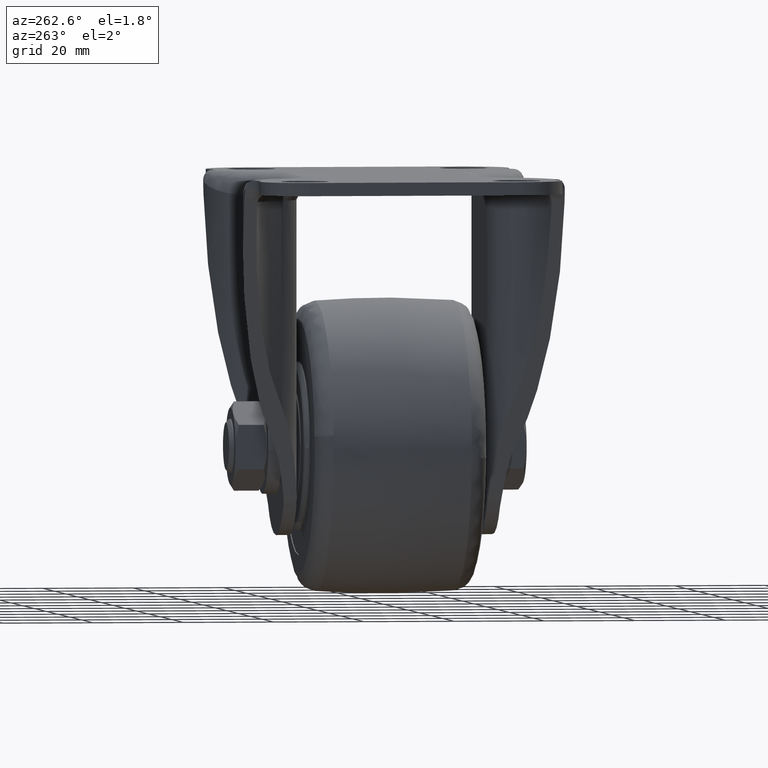
[diagram: clean part render]
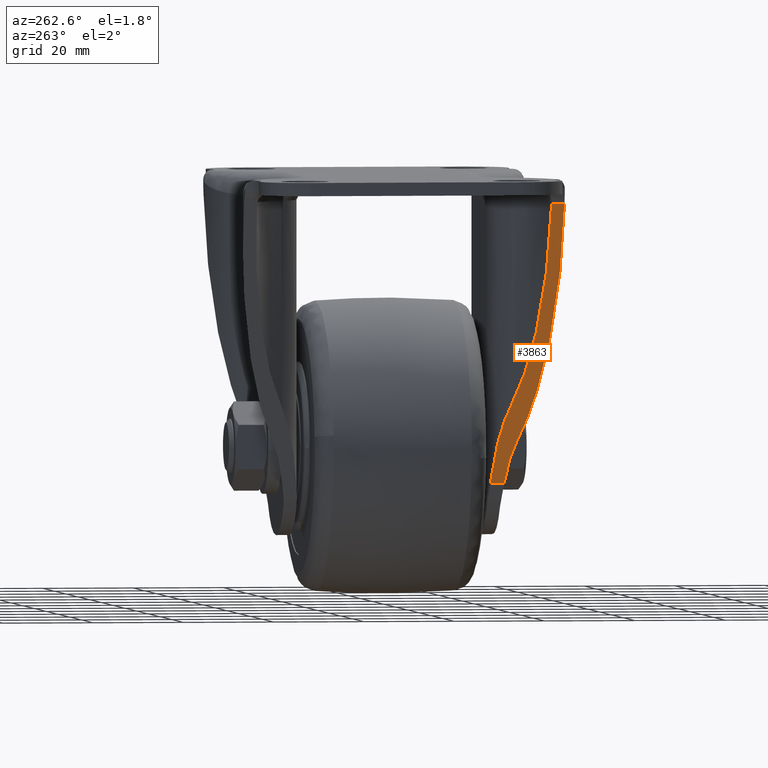
[diagram: same view with one face highlighted and labeled with its STEP entity id]
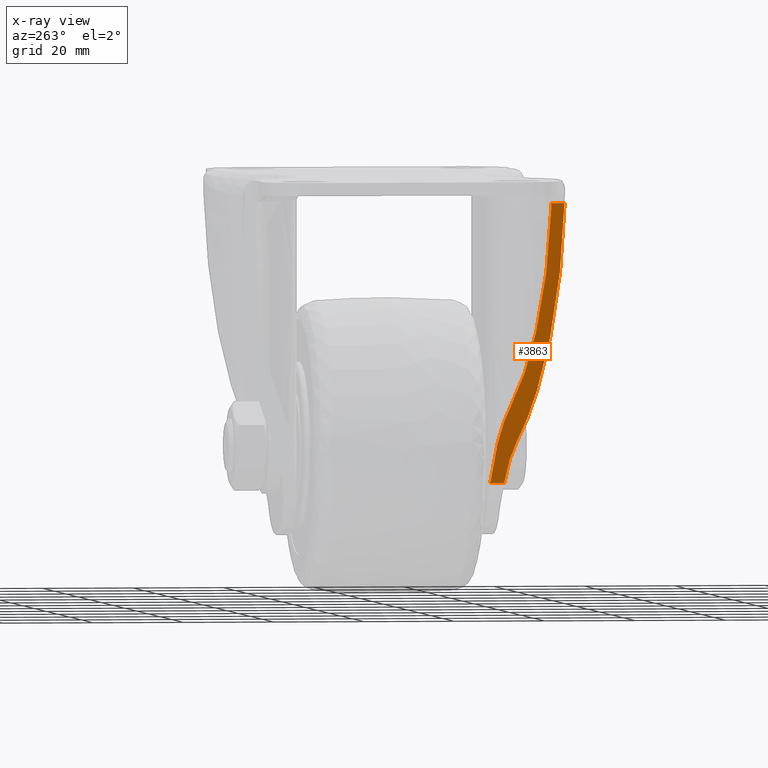
[diagram: x-ray of the same camera — body ghosted, the highlighted face saturated]
A machine part, auxiliary view. The second image highlights one B-rep face of the part: STEP entity #3863.
The next image is the same camera in x-ray: the body ghosted, the highlighted face saturated — about 0% of this face is hidden behind the body in this view.
In plain terms, the highlighted face is a freeform B-spline surface patch.
Its self-contained STEP definition (entity closure, byte-faithful):
#3720=CARTESIAN_POINT('',(-15.788895217503800,-24.576652694973451,-67.391547508985795));
#3721=VERTEX_POINT('',#3720);
#3739=CARTESIAN_POINT('',(-15.788895217503800,-21.489115287832949,-67.391547508985795));
#3740=VERTEX_POINT('',#3739);
#3741=CARTESIAN_POINT('',(-15.788895217503800,-21.489115287832949,-67.391547508985795));
#3742=CARTESIAN_POINT('',(-15.788895217503800,-24.576652694973451,-67.391547508985795));
#3743=QUASI_UNIFORM_CURVE('',1,(#3741,#3742),.UNSPECIFIED.,.F.,.U.);
#3744=EDGE_CURVE('',#3740,#3721,#3743,.T.);
#3783=CARTESIAN_POINT('',(-35.547570941917193,-36.198834765034668,-2.286271599631040));
#3784=CARTESIAN_POINT('',(-14.848901555015850,-36.198834765034668,-70.488847530651938));
#3785=CARTESIAN_POINT('',(-35.547570941917193,-20.789319244880819,-2.286271599631040));
#3786=CARTESIAN_POINT('',(-14.848901555015850,-20.789319244880819,-70.488847530651938));
#3787=B_SPLINE_SURFACE_WITH_KNOTS('',1,1,((#3783,#3785),(#3784,#3786)),.UNSPECIFIED.,.F.,.F.,.U.,(2,2),(2,2),(0.0,71.274303069303457),(0.0,15.409515520153841),.UNSPECIFIED.);
#3788=CARTESIAN_POINT('',(-34.607577784185750,-35.485244668119449,-5.383569958113631));
#3789=VERTEX_POINT('',#3788);
#3790=CARTESIAN_POINT('',(-18.621833761987101,-27.051020408163250,-58.056952005455202));
#3791=VERTEX_POINT('',#3790);
#3792=CARTESIAN_POINT('',(-34.607577784185743,-35.485244668119449,-5.383569958113628));
#3793=CARTESIAN_POINT('',(-24.166527894351418,-35.908268214409276,-39.787061535289233));
#3794=CARTESIAN_POINT('',(-18.621833761987109,-27.051020408163250,-58.056952005455109));
#3802=(BOUNDED_CURVE()B_SPLINE_CURVE(2,(#3792,#3793,#3794),.UNSPECIFIED.,.F.,.U.)CURVE()GEOMETRIC_REPRESENTATION_ITEM()QUASI_UNIFORM_CURVE()RATIONAL_B_SPLINE_CURVE((1.0,0.864830609078626,1.0))REPRESENTATION_ITEM(''));
#3803=EDGE_CURVE('',#3789,#3791,#3802,.T.);
#3804=ORIENTED_EDGE('',*,*,#3803,.F.);
#3805=CARTESIAN_POINT('',(-34.607577784185658,-32.590102987473450,-5.383569958113840));
#3806=VERTEX_POINT('',#3805);
#3807=CARTESIAN_POINT('',(-34.607577784185750,-35.485244668119449,-5.383569958113631));
#3808=CARTESIAN_POINT('',(-34.607577784185658,-32.590102987473450,-5.383569958113840));
#3809=QUASI_UNIFORM_CURVE('',1,(#3807,#3808),.UNSPECIFIED.,.F.,.U.);
#3810=EDGE_CURVE('',#3789,#3806,#3809,.T.);
#3811=ORIENTED_EDGE('',*,*,#3810,.T.);
#3812=CARTESIAN_POINT('',(-34.125788623450553,-32.597981488267003,-6.971075956860530));
#3813=VERTEX_POINT('',#3812);
#3814=CARTESIAN_POINT('',(-34.607577784185658,-32.590102987473450,-5.383569958113840));
#3815=CARTESIAN_POINT('',(-34.125788623450553,-32.597981488267003,-6.971075956860530));
#3816=QUASI_UNIFORM_CURVE('',1,(#3814,#3815),.UNSPECIFIED.,.F.,.U.);
#3817=EDGE_CURVE('',#3806,#3813,#3816,.T.);
#3818=ORIENTED_EDGE('',*,*,#3817,.T.);
#3819=CARTESIAN_POINT('',(-21.079916333666951,-25.512244897959199,-49.957515268434392));
#3820=VERTEX_POINT('',#3819);
#3821=CARTESIAN_POINT('',(-34.125788623450553,-32.597981488266967,-6.971075956860529));
#3822=CARTESIAN_POINT('',(-25.602880407941221,-32.737352842283741,-35.054248061114194));
#3823=CARTESIAN_POINT('',(-21.079916333666969,-25.512244897959199,-49.957515268434392));
#3831=(BOUNDED_CURVE()B_SPLINE_CURVE(2,(#3821,#3822,#3823),.UNSPECIFIED.,.F.,.U.)CURVE()GEOMETRIC_REPRESENTATION_ITEM()QUASI_UNIFORM_CURVE()RATIONAL_B_SPLINE_CURVE((1.0,0.870827910367644,1.0))REPRESENTATION_ITEM(''));
#3832=EDGE_CURVE('',#3813,#3820,#3831,.T.);
#3833=ORIENTED_EDGE('',*,*,#3832,.T.);
#3834=CARTESIAN_POINT('',(-15.788895217503759,-21.489115287832949,-67.391547508985937));
#3835=CARTESIAN_POINT('',(-19.194710490999007,-22.500764928878805,-56.169310443612694));
#3836=CARTESIAN_POINT('',(-21.079916333666940,-25.512244897959199,-49.957515268434442));
#3844=(BOUNDED_CURVE()B_SPLINE_CURVE(2,(#3834,#3835,#3836),.UNSPECIFIED.,.F.,.U.)CURVE()GEOMETRIC_REPRESENTATION_ITEM()QUASI_UNIFORM_CURVE()RATIONAL_B_SPLINE_CURVE((1.0,0.935413626346791,1.0))REPRESENTATION_ITEM(''));
#3845=EDGE_CURVE('',#3740,#3820,#3844,.T.);
#3846=ORIENTED_EDGE('',*,*,#3845,.F.);
#3847=ORIENTED_EDGE('',*,*,#3744,.T.);
#3848=CARTESIAN_POINT('',(-15.788895217503800,-24.576652694973419,-67.391547508985809));
#3849=CARTESIAN_POINT('',(-17.579323472667078,-25.385685629970347,-61.492046592318466));
#3850=CARTESIAN_POINT('',(-18.621833761987070,-27.051020408163229,-58.056952005455202));
#3858=(BOUNDED_CURVE()B_SPLINE_CURVE(2,(#3848,#3849,#3850),.UNSPECIFIED.,.F.,.U.)CURVE()GEOMETRIC_REPRESENTATION_ITEM()QUASI_UNIFORM_CURVE()RATIONAL_B_SPLINE_CURVE((1.0,0.957227145676897,1.0))REPRESENTATION_ITEM(''));
#3859=EDGE_CURVE('',#3721,#3791,#3858,.T.);
#3860=ORIENTED_EDGE('',*,*,#3859,.T.);
#3861=EDGE_LOOP('',(#3804,#3811,#3818,#3833,#3846,#3847,#3860));
#3862=FACE_OUTER_BOUND('',#3861,.T.);
#3863=ADVANCED_FACE('',(#3862),#3787,.F.);